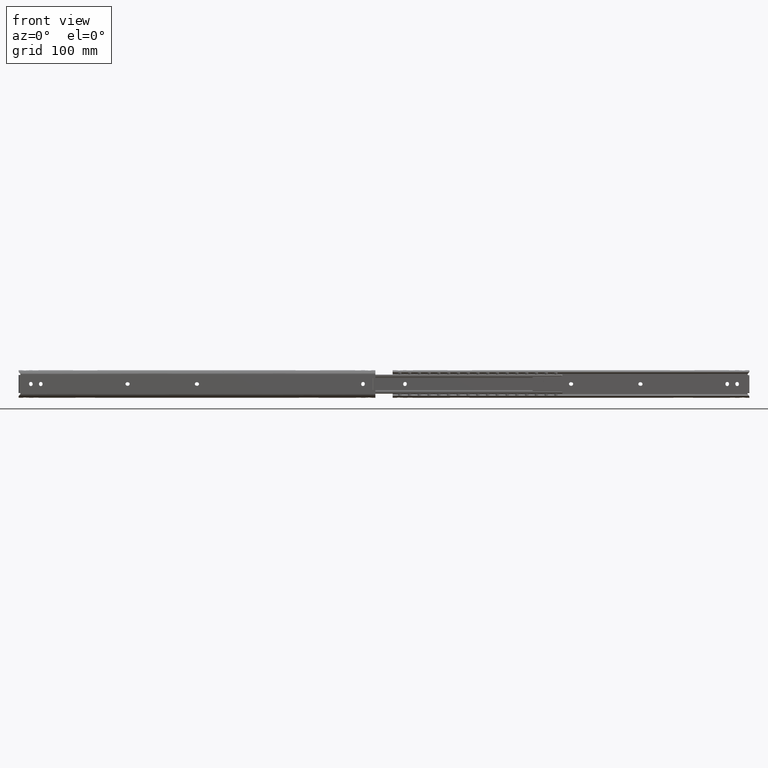
[diagram: clean part render]
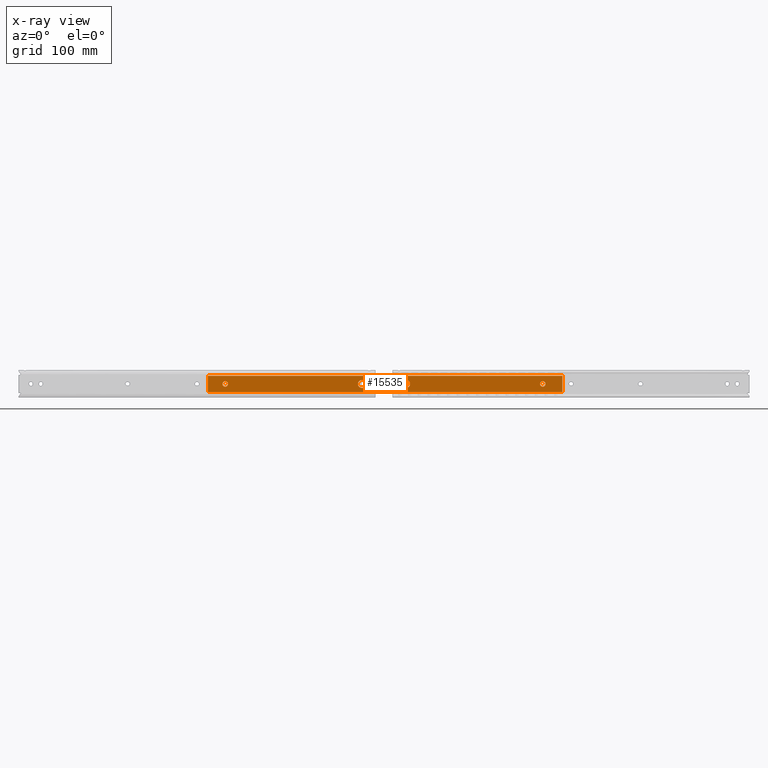
[diagram: x-ray — body ghosted, one internal face saturated and labeled with its STEP entity id]
A machine part, front view, then the same camera in x-ray: the body is ghosted and one INTERNAL B-rep face — a face not visible from any outside direction — is saturated and labeled: STEP entity #15535.
In plain terms, the highlighted face is a freeform B-spline surface patch.
Its self-contained STEP definition (entity closure, byte-faithful):
#13243=CARTESIAN_POINT('',(-674.875533342267320,-9.600000000002002,-0.413119821344294));
#13244=VERTEX_POINT('',#13243);
#13250=CARTESIAN_POINT('',(-671.399999999999980,-9.600000000002000,3.500000000000000));
#13251=VERTEX_POINT('',#13250);
#13252=CARTESIAN_POINT('',(-674.875533342267320,-9.600000000002002,-0.413119821344294));
#13253=CARTESIAN_POINT('',(-674.900000000000090,-9.600000000002000,-0.207284418827808));
#13254=CARTESIAN_POINT('',(-674.899999999999980,-9.600000000002000,1.882843E-018));
#13255=CARTESIAN_POINT('',(-674.900000000000090,-9.600000000002000,3.500000000000000));
#13256=CARTESIAN_POINT('',(-671.399999999999980,-9.600000000002000,3.500000000000000));
#13264=(BOUNDED_CURVE()B_SPLINE_CURVE(2,(#13252,#13253,#13254,#13255,#13256),.UNSPECIFIED.,.F.,.U.)B_SPLINE_CURVE_WITH_KNOTS((3,2,3),(0.229562473511206,0.250000000000000,0.500000000000000),.UNSPECIFIED.)CURVE()GEOMETRIC_REPRESENTATION_ITEM()RATIONAL_B_SPLINE_CURVE((0.956026754179186,0.976055948328447,1.0,0.707106781186547,1.0))REPRESENTATION_ITEM(''));
#13265=EDGE_CURVE('',#13244,#13251,#13264,.T.);
#13267=CARTESIAN_POINT('',(-667.906528205582280,-9.600000000002000,0.213669889333306));
#13268=VERTEX_POINT('',#13267);
#13269=CARTESIAN_POINT('',(-671.399999999999980,-9.600000000002000,3.500000000000000));
#13270=CARTESIAN_POINT('',(-668.107528767645700,-9.600000000002002,3.500000000000000));
#13271=CARTESIAN_POINT('',(-667.906528205582280,-9.600000000002000,0.213669889333306));
#13279=(BOUNDED_CURVE()B_SPLINE_CURVE(2,(#13269,#13270,#13271),.UNSPECIFIED.,.F.,.U.)B_SPLINE_CURVE_WITH_KNOTS((3,3),(0.500000000000000,0.739332962147008),.UNSPECIFIED.)CURVE()GEOMETRIC_REPRESENTATION_ITEM()RATIONAL_B_SPLINE_CURVE((1.0,0.719603993394419,0.976072041469683))REPRESENTATION_ITEM(''));
#13280=EDGE_CURVE('',#13251,#13268,#13279,.T.);
#13354=CARTESIAN_POINT('',(-671.399999999999980,-9.600000000002000,-3.500000000000000));
#13355=VERTEX_POINT('',#13354);
#13356=CARTESIAN_POINT('',(-667.906528205582280,-9.600000000002000,0.213669889333306));
#13357=CARTESIAN_POINT('',(-667.900000000000090,-9.600000000002002,0.106934672509064));
#13358=CARTESIAN_POINT('',(-667.900000000000090,-9.600000000002000,1.882843E-018));
#13359=CARTESIAN_POINT('',(-667.900000000000090,-9.600000000002000,-3.500000000000000));
#13360=CARTESIAN_POINT('',(-671.399999999999980,-9.600000000002000,-3.500000000000000));
#13368=(BOUNDED_CURVE()B_SPLINE_CURVE(2,(#13356,#13357,#13358,#13359,#13360),.UNSPECIFIED.,.F.,.U.)B_SPLINE_CURVE_WITH_KNOTS((3,2,3),(0.739332962147008,0.750000000000000,1.0),.UNSPECIFIED.)CURVE()GEOMETRIC_REPRESENTATION_ITEM()RATIONAL_B_SPLINE_CURVE((0.976072041469684,0.987502787792129,1.0,0.707106781186547,1.0))REPRESENTATION_ITEM(''));
#13369=EDGE_CURVE('',#13268,#13355,#13368,.T.);
#13371=CARTESIAN_POINT('',(-671.399999999999980,-9.600000000002000,-3.500000000000000));
#13372=CARTESIAN_POINT('',(-674.508610840747560,-9.600000000002000,-3.500000000000000));
#13373=CARTESIAN_POINT('',(-674.875533342267320,-9.600000000002002,-0.413119821344294));
#13381=(BOUNDED_CURVE()B_SPLINE_CURVE(2,(#13371,#13372,#13373),.UNSPECIFIED.,.F.,.U.)B_SPLINE_CURVE_WITH_KNOTS((3,3),(0.0,0.229562473511206),.UNSPECIFIED.)CURVE()GEOMETRIC_REPRESENTATION_ITEM()RATIONAL_B_SPLINE_CURVE((1.0,0.731050832858100,0.956026754179186))REPRESENTATION_ITEM(''));
#13382=EDGE_CURVE('',#13355,#13244,#13381,.T.);
#13406=CARTESIAN_POINT('',(-261.127068251616890,-9.600000000002000,-0.434448007329520));
#13407=VERTEX_POINT('',#13406);
#13408=CARTESIAN_POINT('',(-264.600000000000020,-9.600000000002000,-3.500000000000000));
#13409=VERTEX_POINT('',#13408);
#13410=CARTESIAN_POINT('',(-261.127068251616890,-9.600000000002000,-0.434448007329520));
#13411=CARTESIAN_POINT('',(-261.510554899564060,-9.600000000002000,-3.500000000000000));
#13412=CARTESIAN_POINT('',(-264.600000000000020,-9.600000000002000,-3.500000000000000));
#13420=(BOUNDED_CURVE()B_SPLINE_CURVE(2,(#13410,#13411,#13412),.UNSPECIFIED.,.F.,.U.)B_SPLINE_CURVE_WITH_KNOTS((3,3),(0.771473928975569,1.0),.UNSPECIFIED.)CURVE()GEOMETRIC_REPRESENTATION_ITEM()RATIONAL_B_SPLINE_CURVE((0.954005430265273,0.732265053899451,1.0))REPRESENTATION_ITEM(''));
#13421=EDGE_CURVE('',#13407,#13409,#13420,.T.);
#13423=CARTESIAN_POINT('',(-268.099866730648500,-9.600000000001998,0.030542882967742));
#13424=VERTEX_POINT('',#13423);
#13425=CARTESIAN_POINT('',(-264.600000000000020,-9.600000000002000,-3.500000000000000));
#13426=CARTESIAN_POINT('',(-268.100000000000020,-9.600000000002000,-3.500000000000000));
#13427=CARTESIAN_POINT('',(-268.100000000000020,-9.600000000002000,1.882843E-018));
#13428=CARTESIAN_POINT('',(-268.100000000000020,-9.600000000002000,0.015271736596387));
#13429=CARTESIAN_POINT('',(-268.099866730648500,-9.600000000001998,0.030542882967742));
#13437=(BOUNDED_CURVE()B_SPLINE_CURVE(2,(#13425,#13426,#13427,#13428,#13429),.UNSPECIFIED.,.F.,.U.)B_SPLINE_CURVE_WITH_KNOTS((3,2,3),(0.0,0.250000000000000,0.251539895213061),.UNSPECIFIED.)CURVE()GEOMETRIC_REPRESENTATION_ITEM()RATIONAL_B_SPLINE_CURVE((1.0,0.707106781186547,1.0,0.998195900537645,0.996414026068298))REPRESENTATION_ITEM(''));
#13438=EDGE_CURVE('',#13409,#13424,#13437,.T.);
#13509=CARTESIAN_POINT('',(-264.600000000000020,-9.600000000002000,3.500000000000000));
#13510=VERTEX_POINT('',#13509);
#13511=CARTESIAN_POINT('',(-264.600000000000020,-9.600000000002000,3.500000000000000));
#13512=CARTESIAN_POINT('',(-261.100000000000080,-9.600000000002000,3.500000000000000));
#13513=CARTESIAN_POINT('',(-261.100000000000020,-9.600000000002000,1.882843E-018));
#13514=CARTESIAN_POINT('',(-261.099999999999970,-9.600000000002000,-0.218067246417945));
#13515=CARTESIAN_POINT('',(-261.127068251616890,-9.600000000002000,-0.434448007329520));
#13523=(BOUNDED_CURVE()B_SPLINE_CURVE(2,(#13511,#13512,#13513,#13514,#13515),.UNSPECIFIED.,.F.,.U.)B_SPLINE_CURVE_WITH_KNOTS((3,2,3),(0.500000000000000,0.750000000000000,0.771473928975570),.UNSPECIFIED.)CURVE()GEOMETRIC_REPRESENTATION_ITEM()RATIONAL_B_SPLINE_CURVE((1.0,0.707106781186547,1.0,0.974841727287096,0.954005430265271))REPRESENTATION_ITEM(''));
#13524=EDGE_CURVE('',#13510,#13407,#13523,.T.);
#13558=CARTESIAN_POINT('',(-268.099866730648500,-9.600000000001998,0.030542882967742));
#13559=CARTESIAN_POINT('',(-268.069589219785880,-9.600000000002002,3.500000000000000));
#13560=CARTESIAN_POINT('',(-264.600000000000020,-9.600000000002000,3.500000000000000));
#13568=(BOUNDED_CURVE()B_SPLINE_CURVE(2,(#13558,#13559,#13560),.UNSPECIFIED.,.F.,.U.)B_SPLINE_CURVE_WITH_KNOTS((3,3),(0.251539895213061,0.500000000000000),.UNSPECIFIED.)CURVE()GEOMETRIC_REPRESENTATION_ITEM()RATIONAL_B_SPLINE_CURVE((0.996414026068298,0.708910880648902,1.0))REPRESENTATION_ITEM(''));
#13569=EDGE_CURVE('',#13424,#13510,#13568,.T.);
#14147=CARTESIAN_POINT('',(-493.399999999999980,-9.600000000001959,-5.0));
#14148=VERTEX_POINT('',#14147);
#14149=CARTESIAN_POINT('',(-496.399999999999980,-9.600000000002000,-5.0));
#14150=VERTEX_POINT('',#14149);
#14151=CARTESIAN_POINT('',(-493.399999999999980,-9.600000000001959,-5.0));
#14152=CARTESIAN_POINT('',(-496.399999999999980,-9.600000000002000,-5.0));
#14153=QUASI_UNIFORM_CURVE('',1,(#14151,#14152),.UNSPECIFIED.,.F.,.U.);
#14154=EDGE_CURVE('',#14148,#14150,#14153,.T.);
#14196=CARTESIAN_POINT('',(-493.399999999999980,-9.600000000002000,4.999999999999800));
#14197=VERTEX_POINT('',#14196);
#14198=CARTESIAN_POINT('',(-493.399999999999980,-9.600000000002000,5.0));
#14199=CARTESIAN_POINT('',(-488.399999999999980,-9.600000000002000,5.000000000000001));
#14200=CARTESIAN_POINT('',(-488.399999999999980,-9.600000000002000,1.882843E-018));
#14201=CARTESIAN_POINT('',(-488.399999999999980,-9.600000000002000,-5.000000000000001));
#14202=CARTESIAN_POINT('',(-493.399999999999980,-9.600000000002000,-5.0));
#14210=(BOUNDED_CURVE()B_SPLINE_CURVE(2,(#14198,#14199,#14200,#14201,#14202),.UNSPECIFIED.,.F.,.U.)B_SPLINE_CURVE_WITH_KNOTS((3,2,3),(0.0,0.500000000000000,1.0),.UNSPECIFIED.)CURVE()GEOMETRIC_REPRESENTATION_ITEM()RATIONAL_B_SPLINE_CURVE((1.0,0.707106781186548,1.0,0.707106781186548,1.0))REPRESENTATION_ITEM(''));
#14211=EDGE_CURVE('',#14197,#14148,#14210,.T.);
#14244=CARTESIAN_POINT('',(-496.399999999999980,-9.600000000002000,4.999999999999800));
#14245=VERTEX_POINT('',#14244);
#14246=CARTESIAN_POINT('',(-496.399999999999980,-9.600000000002000,4.999999999999800));
#14247=CARTESIAN_POINT('',(-493.399999999999980,-9.600000000002000,4.999999999999800));
#14248=QUASI_UNIFORM_CURVE('',1,(#14246,#14247),.UNSPECIFIED.,.F.,.U.);
#14249=EDGE_CURVE('',#14245,#14197,#14248,.T.);
#14285=CARTESIAN_POINT('',(-496.399999999999980,-9.600000000002000,-5.0));
#14286=CARTESIAN_POINT('',(-501.400000000000090,-9.600000000002000,-5.000000000000001));
#14287=CARTESIAN_POINT('',(-501.399999999999980,-9.600000000002000,1.882843E-018));
#14288=CARTESIAN_POINT('',(-501.400000000000090,-9.600000000002000,5.000000000000001));
#14289=CARTESIAN_POINT('',(-496.399999999999980,-9.600000000002000,5.0));
#14297=(BOUNDED_CURVE()B_SPLINE_CURVE(2,(#14285,#14286,#14287,#14288,#14289),.UNSPECIFIED.,.F.,.U.)B_SPLINE_CURVE_WITH_KNOTS((3,2,3),(0.0,0.500000000000000,1.0),.UNSPECIFIED.)CURVE()GEOMETRIC_REPRESENTATION_ITEM()RATIONAL_B_SPLINE_CURVE((1.0,0.707106781186548,1.0,0.707106781186548,1.0))REPRESENTATION_ITEM(''));
#14298=EDGE_CURVE('',#14150,#14245,#14297,.T.);
#14338=CARTESIAN_POINT('',(-442.600000000000020,-9.600000000002000,-5.0));
#14339=VERTEX_POINT('',#14338);
#14340=CARTESIAN_POINT('',(-442.600000000000020,-9.600000000002000,5.0));
#14341=VERTEX_POINT('',#14340);
#14342=CARTESIAN_POINT('',(-442.600000000000020,-9.600000000002000,-5.0));
#14343=CARTESIAN_POINT('',(-447.600000000000020,-9.600000000002000,-5.000000000000001));
#14344=CARTESIAN_POINT('',(-447.600000000000020,-9.600000000002000,1.882843E-018));
#14345=CARTESIAN_POINT('',(-447.600000000000020,-9.600000000002000,5.000000000000001));
#14346=CARTESIAN_POINT('',(-442.600000000000020,-9.600000000002000,5.0));
#14354=(BOUNDED_CURVE()B_SPLINE_CURVE(2,(#14342,#14343,#14344,#14345,#14346),.UNSPECIFIED.,.F.,.U.)B_SPLINE_CURVE_WITH_KNOTS((3,2,3),(0.0,0.500000000000000,1.0),.UNSPECIFIED.)CURVE()GEOMETRIC_REPRESENTATION_ITEM()RATIONAL_B_SPLINE_CURVE((1.0,0.707106781186548,1.0,0.707106781186548,1.0))REPRESENTATION_ITEM(''));
#14355=EDGE_CURVE('',#14339,#14341,#14354,.T.);
#14394=CARTESIAN_POINT('',(-439.600000000000020,-9.600000000002000,-5.0));
#14395=VERTEX_POINT('',#14394);
#14396=CARTESIAN_POINT('',(-439.600000000000020,-9.600000000002000,-5.0));
#14397=CARTESIAN_POINT('',(-442.600000000000020,-9.600000000002000,-5.0));
#14398=QUASI_UNIFORM_CURVE('',1,(#14396,#14397),.UNSPECIFIED.,.F.,.U.);
#14399=EDGE_CURVE('',#14395,#14339,#14398,.T.);
#14435=CARTESIAN_POINT('',(-439.600000000000020,-9.600000000002000,5.0));
#14436=VERTEX_POINT('',#14435);
#14437=CARTESIAN_POINT('',(-439.600000000000020,-9.600000000002000,5.0));
#14438=CARTESIAN_POINT('',(-434.599999999999910,-9.600000000002000,5.000000000000001));
#14439=CARTESIAN_POINT('',(-434.600000000000020,-9.600000000002000,1.882843E-018));
#14440=CARTESIAN_POINT('',(-434.599999999999910,-9.600000000002000,-5.000000000000001));
#14441=CARTESIAN_POINT('',(-439.600000000000020,-9.600000000002000,-5.0));
#14449=(BOUNDED_CURVE()B_SPLINE_CURVE(2,(#14437,#14438,#14439,#14440,#14441),.UNSPECIFIED.,.F.,.U.)B_SPLINE_CURVE_WITH_KNOTS((3,2,3),(0.0,0.500000000000000,1.0),.UNSPECIFIED.)CURVE()GEOMETRIC_REPRESENTATION_ITEM()RATIONAL_B_SPLINE_CURVE((1.0,0.707106781186548,1.0,0.707106781186548,1.0))REPRESENTATION_ITEM(''));
#14450=EDGE_CURVE('',#14436,#14395,#14449,.T.);
#14483=CARTESIAN_POINT('',(-442.600000000000020,-9.600000000002000,5.0));
#14484=CARTESIAN_POINT('',(-439.600000000000020,-9.600000000002000,5.0));
#14485=QUASI_UNIFORM_CURVE('',1,(#14483,#14484),.UNSPECIFIED.,.F.,.U.);
#14486=EDGE_CURVE('',#14341,#14436,#14485,.T.);
#15020=CARTESIAN_POINT('',(-239.599999999999990,-9.600000000001979,-10.427061000000000));
#15021=VERTEX_POINT('',#15020);
#15037=CARTESIAN_POINT('',(-239.599999999999990,-9.600000000001959,10.427061000000000));
#15038=VERTEX_POINT('',#15037);
#15039=CARTESIAN_POINT('',(-239.599999999999990,-9.600000000001979,-10.427061000000000));
#15040=CARTESIAN_POINT('',(-239.599999999999990,-9.600000000001959,10.427061000000000));
#15041=QUASI_UNIFORM_CURVE('',1,(#15039,#15040),.UNSPECIFIED.,.F.,.U.);
#15042=EDGE_CURVE('',#15021,#15038,#15041,.T.);
#15168=CARTESIAN_POINT('',(-693.399999999999980,-9.600000000001959,10.427061000000000));
#15169=VERTEX_POINT('',#15168);
#15185=CARTESIAN_POINT('',(-693.399999999999980,-9.600000000001979,-10.427061000000000));
#15186=VERTEX_POINT('',#15185);
#15187=CARTESIAN_POINT('',(-693.399999999999980,-9.600000000001979,-10.427061000000000));
#15188=CARTESIAN_POINT('',(-693.399999999999980,-9.600000000001959,10.427061000000000));
#15189=QUASI_UNIFORM_CURVE('',1,(#15187,#15188),.UNSPECIFIED.,.F.,.U.);
#15190=EDGE_CURVE('',#15186,#15169,#15189,.T.);
#15486=CARTESIAN_POINT('',(-693.399999999999980,-9.600000000001959,10.427061000000000));
#15487=CARTESIAN_POINT('',(-239.599999999999990,-9.600000000001959,10.427061000000000));
#15488=QUASI_UNIFORM_CURVE('',1,(#15486,#15487),.UNSPECIFIED.,.F.,.U.);
#15489=EDGE_CURVE('',#15169,#15038,#15488,.T.);
#15496=CARTESIAN_POINT('',(-216.932695139502190,-9.600000000001959,11.468724549244239));
#15497=CARTESIAN_POINT('',(-216.932695139502190,-9.600000000001959,-11.468724922145000));
#15498=CARTESIAN_POINT('',(-716.067321089650700,-9.600000000001959,11.468724549244239));
#15499=CARTESIAN_POINT('',(-716.067321089650700,-9.600000000001959,-11.468724922145000));
#15500=B_SPLINE_SURFACE_WITH_KNOTS('',1,1,((#15496,#15498),(#15497,#15499)),.UNSPECIFIED.,.F.,.F.,.U.,(2,2),(2,2),(0.0,22.937449471389240),(0.0,499.134625950148570),.UNSPECIFIED.);
#15501=ORIENTED_EDGE('',*,*,#15042,.F.);
#15502=CARTESIAN_POINT('',(-693.399999999999980,-9.600000000001979,-10.427061000000000));
#15503=CARTESIAN_POINT('',(-239.599999999999990,-9.600000000001979,-10.427061000000000));
#15504=QUASI_UNIFORM_CURVE('',1,(#15502,#15503),.UNSPECIFIED.,.F.,.U.);
#15505=EDGE_CURVE('',#15186,#15021,#15504,.T.);
#15506=ORIENTED_EDGE('',*,*,#15505,.F.);
#15507=ORIENTED_EDGE('',*,*,#15190,.T.);
#15508=ORIENTED_EDGE('',*,*,#15489,.T.);
#15509=EDGE_LOOP('',(#15501,#15506,#15507,#15508));
#15510=FACE_OUTER_BOUND('',#15509,.T.);
#15511=ORIENTED_EDGE('',*,*,#14486,.F.);
#15512=ORIENTED_EDGE('',*,*,#14355,.F.);
#15513=ORIENTED_EDGE('',*,*,#14399,.F.);
#15514=ORIENTED_EDGE('',*,*,#14450,.F.);
#15515=EDGE_LOOP('',(#15511,#15512,#15513,#15514));
#15516=FACE_BOUND('',#15515,.T.);
#15517=ORIENTED_EDGE('',*,*,#14298,.F.);
#15518=ORIENTED_EDGE('',*,*,#14154,.F.);
#15519=ORIENTED_EDGE('',*,*,#14211,.F.);
#15520=ORIENTED_EDGE('',*,*,#14249,.F.);
#15521=EDGE_LOOP('',(#15517,#15518,#15519,#15520));
#15522=FACE_BOUND('',#15521,.T.);
#15523=ORIENTED_EDGE('',*,*,#13438,.F.);
#15524=ORIENTED_EDGE('',*,*,#13421,.F.);
#15525=ORIENTED_EDGE('',*,*,#13524,.F.);
#15526=ORIENTED_EDGE('',*,*,#13569,.F.);
#15527=EDGE_LOOP('',(#15523,#15524,#15525,#15526));
#15528=FACE_BOUND('',#15527,.T.);
#15529=ORIENTED_EDGE('',*,*,#13280,.F.);
#15530=ORIENTED_EDGE('',*,*,#13265,.F.);
#15531=ORIENTED_EDGE('',*,*,#13382,.F.);
#15532=ORIENTED_EDGE('',*,*,#13369,.F.);
#15533=EDGE_LOOP('',(#15529,#15530,#15531,#15532));
#15534=FACE_BOUND('',#15533,.T.);
#15535=ADVANCED_FACE('',(#15510,#15516,#15522,#15528,#15534),#15500,.T.);